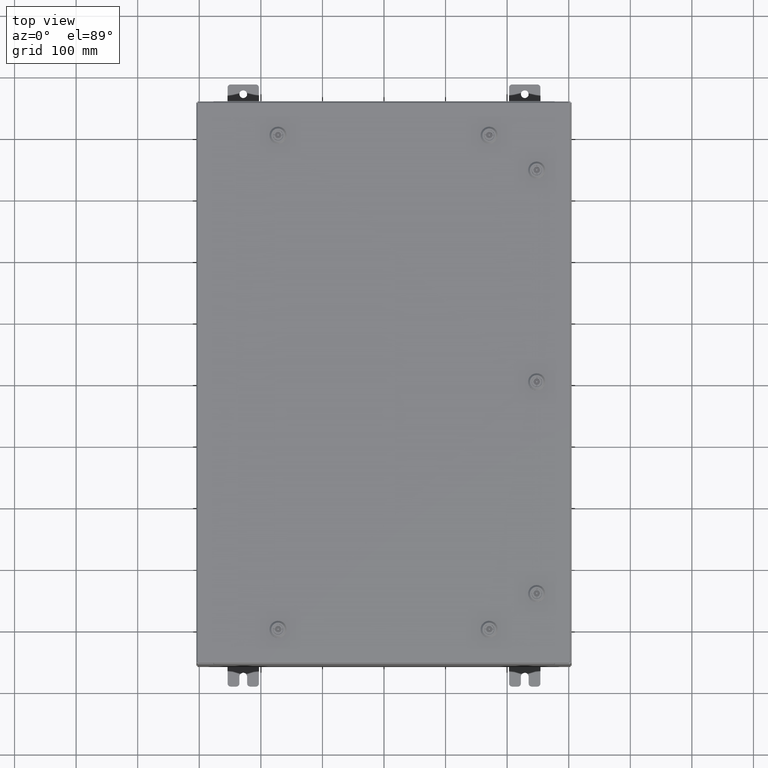
[diagram: clean part render]
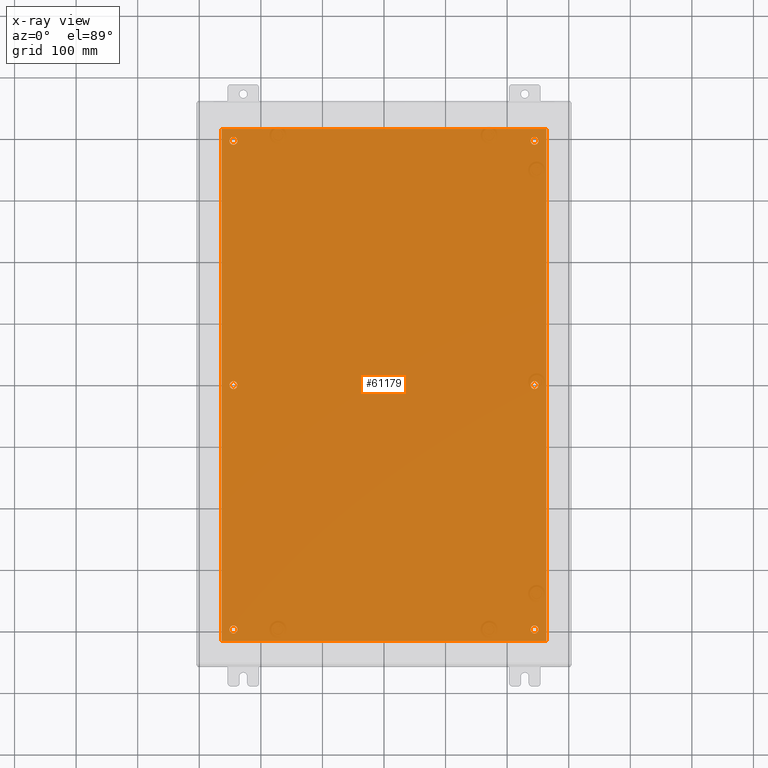
[diagram: x-ray — body ghosted, one internal face saturated and labeled with its STEP entity id]
A machine part, top view, then the same camera in x-ray: the body is ghosted and one INTERNAL B-rep face — a face not visible from any outside direction — is saturated and labeled: STEP entity #61179.
In plain terms, the highlighted planar face has unit normal (0, 0, -1).
Its self-contained STEP definition (entity closure, byte-faithful):
#755 = DIRECTION ( 'NONE',  ( -0.0000000000000000000, -0.0000000000000000000, 1.000000000000000000 ) ) ;
#839 = CIRCLE ( 'NONE', #11360, 0.2500000000000008900 ) ;
#1213 = CARTESIAN_POINT ( 'NONE',  ( 10.50000000000000400, 16.38299999999999900, -0.1040000000000009100 ) ) ;
#1406 = EDGE_CURVE ( 'NONE', #40928, #46200, #36623, .T. ) ;
#1914 = DIRECTION ( 'NONE',  ( -1.000000000000000000, 0.0000000000000000000, 0.0000000000000000000 ) ) ;
#2776 = AXIS2_PLACEMENT_3D ( 'NONE', #14610, #49249, #19579 ) ;
#2951 = VERTEX_POINT ( 'NONE', #44979 ) ;
#3229 = DIRECTION ( 'NONE',  ( -1.000000000000000000, 0.0000000000000000000, 0.0000000000000000000 ) ) ;
#3245 = CARTESIAN_POINT ( 'NONE',  ( 9.375000000000007100, 2.650915570591087300E-015, -0.1039999999999999800 ) ) ;
#3778 = EDGE_LOOP ( 'NONE', ( #18070, #28162 ) ) ;
#4069 = DIRECTION ( 'NONE',  ( -1.000000000000000000, 0.0000000000000000000, 0.0000000000000000000 ) ) ;
#4398 = EDGE_LOOP ( 'NONE', ( #21626, #49044, #27106, #21446 ) ) ;
#5051 = EDGE_CURVE ( 'NONE', #2951, #56516, #28548, .T. ) ;
#5158 = CARTESIAN_POINT ( 'NONE',  ( -10.38300000000000100, 16.38300000000000300, -0.1039999999999987600 ) ) ;
#5582 = CARTESIAN_POINT ( 'NONE',  ( 9.625000000000007100, 2.620299400612403500E-015, -0.1039999999999999800 ) ) ;
#9186 = CARTESIAN_POINT ( 'NONE',  ( 9.625000000000007100, 15.62500000000000200, -0.1039999999999999800 ) ) ;
#9357 = AXIS2_PLACEMENT_3D ( 'NONE', #62791, #32991, #3229 ) ;
#9732 = VECTOR ( 'NONE', #59581, 39.37007874015748100 ) ;
#10164 = EDGE_CURVE ( 'NONE', #64082, #55939, #55450, .T. ) ;
#10621 = DIRECTION ( 'NONE',  ( -1.000000000000000000, 0.0000000000000000000, 0.0000000000000000000 ) ) ;
#11360 = AXIS2_PLACEMENT_3D ( 'NONE', #26185, #60928, #31138 ) ;
#11791 = FACE_BOUND ( 'NONE', #52235, .T. ) ;
#11844 = ORIENTED_EDGE ( 'NONE', *, *, #17690, .T. ) ;
#12725 = CIRCLE ( 'NONE', #41417, 0.2499999999999998100 ) ;
#12917 = CARTESIAN_POINT ( 'NONE',  ( -9.375000000000005300, 2.628543122537473900E-016, -0.1039999999999999800 ) ) ;
#12989 = CARTESIAN_POINT ( 'NONE',  ( -10.38300000000000100, 16.38300000000000300, -0.1039999999999987600 ) ) ;
#13382 = DIRECTION ( 'NONE',  ( -1.000000000000000000, 0.0000000000000000000, -0.0000000000000000000 ) ) ;
#13879 = VECTOR ( 'NONE', #49670, 39.37007874015748100 ) ;
#14205 = DIRECTION ( 'NONE',  ( -1.000000000000000000, 0.0000000000000000000, 0.0000000000000000000 ) ) ;
#14610 = CARTESIAN_POINT ( 'NONE',  ( 9.625000000000007100, -15.62500000000000200, -0.1039999999999999800 ) ) ;
#14759 = DIRECTION ( 'NONE',  ( -0.0000000000000000000, -0.0000000000000000000, 1.000000000000000000 ) ) ;
#15414 = VERTEX_POINT ( 'NONE', #39891 ) ;
#17206 = AXIS2_PLACEMENT_3D ( 'NONE', #38062, #43032, #13382 ) ;
#17690 = EDGE_CURVE ( 'NONE', #27632, #37785, #21252, .T. ) ;
#18070 = ORIENTED_EDGE ( 'NONE', *, *, #19302, .T. ) ;
#18160 = AXIS2_PLACEMENT_3D ( 'NONE', #9186, #43853, #14205 ) ;
#18678 = CARTESIAN_POINT ( 'NONE',  ( -9.375000000000007100, 15.62500000000000200, -0.1039999999999999800 ) ) ;
#19302 = EDGE_CURVE ( 'NONE', #46200, #40928, #31993, .T. ) ;
#19409 = CARTESIAN_POINT ( 'NONE',  ( 9.625000000000007100, 2.620299400612403500E-015, -0.1039999999999999800 ) ) ;
#19569 = CARTESIAN_POINT ( 'NONE',  ( 9.875000000000007100, 2.620299400612403500E-015, -0.1039999999999999800 ) ) ;
#19579 = DIRECTION ( 'NONE',  ( -1.000000000000000000, 0.0000000000000000000, 0.0000000000000000000 ) ) ;
#19940 = VERTEX_POINT ( 'NONE', #3245 ) ;
#20522 = DIRECTION ( 'NONE',  ( -0.0000000000000000000, -0.0000000000000000000, 1.000000000000000000 ) ) ;
#21252 = CIRCLE ( 'NONE', #9357, 0.2500000000000008900 ) ;
#21446 = ORIENTED_EDGE ( 'NONE', *, *, #53573, .F. ) ;
#21626 = ORIENTED_EDGE ( 'NONE', *, *, #10164, .F. ) ;
#22096 = CIRCLE ( 'NONE', #25225, 0.2499999999999998100 ) ;
#22120 = EDGE_CURVE ( 'NONE', #33283, #44398, #38058, .T. ) ;
#23063 = EDGE_LOOP ( 'NONE', ( #29750, #35880 ) ) ;
#23905 = CARTESIAN_POINT ( 'NONE',  ( 9.875000000000007100, -15.62500000000000200, -0.1039999999999999800 ) ) ;
#23972 = LINE ( 'NONE', #5158, #62043 ) ;
#24403 = DIRECTION ( 'NONE',  ( -1.000000000000000000, 0.0000000000000000000, 0.0000000000000000000 ) ) ;
#24832 = CARTESIAN_POINT ( 'NONE',  ( 9.625000000000007100, 15.62500000000000200, -0.1039999999999999800 ) ) ;
#24877 = CARTESIAN_POINT ( 'NONE',  ( 10.38300000000000100, -16.38299999999999600, -0.1040000000000009100 ) ) ;
#25026 = FACE_BOUND ( 'NONE', #3778, .T. ) ;
#25225 = AXIS2_PLACEMENT_3D ( 'NONE', #24832, #59529, #29755 ) ;
#25678 = CARTESIAN_POINT ( 'NONE',  ( -9.875000000000007100, -15.62500000000000200, -0.1039999999999999800 ) ) ;
#26138 = EDGE_CURVE ( 'NONE', #15414, #60465, #41777, .T. ) ;
#26185 = CARTESIAN_POINT ( 'NONE',  ( -9.625000000000007100, 15.62500000000000200, -0.1039999999999999800 ) ) ;
#26334 = EDGE_CURVE ( 'NONE', #56516, #64082, #23972, .T. ) ;
#26389 = EDGE_CURVE ( 'NONE', #50911, #19940, #34032, .T. ) ;
#26517 = CARTESIAN_POINT ( 'NONE',  ( -9.875000000000007100, 15.62500000000000200, -0.1039999999999999800 ) ) ;
#26540 = FACE_BOUND ( 'NONE', #23063, .T. ) ;
#27106 = ORIENTED_EDGE ( 'NONE', *, *, #5051, .F. ) ;
#27632 = VERTEX_POINT ( 'NONE', #61643 ) ;
#28044 = ORIENTED_EDGE ( 'NONE', *, *, #40827, .T. ) ;
#28162 = ORIENTED_EDGE ( 'NONE', *, *, #1406, .T. ) ;
#28379 = DIRECTION ( 'NONE',  ( -0.0000000000000000000, -0.0000000000000000000, 1.000000000000000000 ) ) ;
#28548 = LINE ( 'NONE', #1213, #13879 ) ;
#28673 = EDGE_CURVE ( 'NONE', #19940, #50911, #37765, .T. ) ;
#28855 = ORIENTED_EDGE ( 'NONE', *, *, #26138, .T. ) ;
#29220 = EDGE_CURVE ( 'NONE', #42708, #34463, #56692, .T. ) ;
#29583 = CARTESIAN_POINT ( 'NONE',  ( -10.50000000000000200, -16.38299999999999600, -0.1040000000000009100 ) ) ;
#29750 = ORIENTED_EDGE ( 'NONE', *, *, #26389, .T. ) ;
#29755 = DIRECTION ( 'NONE',  ( -1.000000000000000000, 0.0000000000000000000, 0.0000000000000000000 ) ) ;
#29866 = ORIENTED_EDGE ( 'NONE', *, *, #46472, .T. ) ;
#29872 = CARTESIAN_POINT ( 'NONE',  ( -9.875000000000005300, 2.934704822324310800E-016, -0.1039999999999999800 ) ) ;
#29937 = AXIS2_PLACEMENT_3D ( 'NONE', #50206, #20522, #55196 ) ;
#31138 = DIRECTION ( 'NONE',  ( -1.000000000000000000, 0.0000000000000000000, 0.0000000000000000000 ) ) ;
#31672 = DIRECTION ( 'NONE',  ( -0.0000000000000000000, -0.0000000000000000000, 1.000000000000000000 ) ) ;
#31884 = AXIS2_PLACEMENT_3D ( 'NONE', #19409, #54072, #24403 ) ;
#31993 = CIRCLE ( 'NONE', #47866, 0.2500000000000008900 ) ;
#32055 = EDGE_LOOP ( 'NONE', ( #11844, #62315 ) ) ;
#32991 = DIRECTION ( 'NONE',  ( -0.0000000000000000000, -0.0000000000000000000, 1.000000000000000000 ) ) ;
#33283 = VERTEX_POINT ( 'NONE', #18678 ) ;
#33816 = AXIS2_PLACEMENT_3D ( 'NONE', #61472, #31672, #1914 ) ;
#33985 = EDGE_LOOP ( 'NONE', ( #37739, #29866 ) ) ;
#34032 = CIRCLE ( 'NONE', #48047, 0.2499999999999998100 ) ;
#34463 = VERTEX_POINT ( 'NONE', #39733 ) ;
#35880 = ORIENTED_EDGE ( 'NONE', *, *, #28673, .T. ) ;
#36113 = LINE ( 'NONE', #24877, #9732 ) ;
#36119 = CARTESIAN_POINT ( 'NONE',  ( -10.38300000000000100, -16.38299999999999600, -0.1040000000000009100 ) ) ;
#36623 = CIRCLE ( 'NONE', #49882, 0.2500000000000008900 ) ;
#37630 = CARTESIAN_POINT ( 'NONE',  ( 10.38300000000000100, -16.38299999999999600, -0.1040000000000009100 ) ) ;
#37739 = ORIENTED_EDGE ( 'NONE', *, *, #22120, .T. ) ;
#37765 = CIRCLE ( 'NONE', #31884, 0.2499999999999998100 ) ;
#37785 = VERTEX_POINT ( 'NONE', #25678 ) ;
#38058 = CIRCLE ( 'NONE', #33816, 0.2500000000000008900 ) ;
#38062 = CARTESIAN_POINT ( 'NONE',  ( 0.0000000000000000000, 0.0000000000000000000, -0.1039999999999999800 ) ) ;
#38179 = FACE_BOUND ( 'NONE', #63958, .T. ) ;
#39544 = EDGE_CURVE ( 'NONE', #60465, #15414, #22096, .T. ) ;
#39733 = CARTESIAN_POINT ( 'NONE',  ( 9.375000000000007100, -15.62500000000000200, -0.1039999999999999800 ) ) ;
#39891 = CARTESIAN_POINT ( 'NONE',  ( 9.375000000000007100, 15.62500000000000200, -0.1039999999999999800 ) ) ;
#40308 = DIRECTION ( 'NONE',  ( -0.0000000000000000000, -0.0000000000000000000, 1.000000000000000000 ) ) ;
#40827 = EDGE_CURVE ( 'NONE', #34463, #42708, #12725, .T. ) ;
#40928 = VERTEX_POINT ( 'NONE', #29872 ) ;
#41417 = AXIS2_PLACEMENT_3D ( 'NONE', #44405, #14759, #49405 ) ;
#41777 = CIRCLE ( 'NONE', #18160, 0.2499999999999998100 ) ;
#42708 = VERTEX_POINT ( 'NONE', #23905 ) ;
#43032 = DIRECTION ( 'NONE',  ( 0.0000000000000000000, 0.0000000000000000000, -1.000000000000000000 ) ) ;
#43853 = DIRECTION ( 'NONE',  ( -0.0000000000000000000, -0.0000000000000000000, 1.000000000000000000 ) ) ;
#44398 = VERTEX_POINT ( 'NONE', #26517 ) ;
#44405 = CARTESIAN_POINT ( 'NONE',  ( 9.625000000000007100, -15.62500000000000200, -0.1039999999999999800 ) ) ;
#44840 = DIRECTION ( 'NONE',  ( 0.0000000000000000000, -1.000000000000000000, 0.0000000000000000000 ) ) ;
#44979 = CARTESIAN_POINT ( 'NONE',  ( 10.38300000000000100, 16.38300000000000300, -0.1040000000000009100 ) ) ;
#46200 = VERTEX_POINT ( 'NONE', #12917 ) ;
#46472 = EDGE_CURVE ( 'NONE', #44398, #33283, #839, .T. ) ;
#47803 = PLANE ( 'NONE',  #17206 ) ;
#47866 = AXIS2_PLACEMENT_3D ( 'NONE', #58090, #28379, #63198 ) ;
#48047 = AXIS2_PLACEMENT_3D ( 'NONE', #5582, #40308, #10621 ) ;
#49044 = ORIENTED_EDGE ( 'NONE', *, *, #26334, .F. ) ;
#49249 = DIRECTION ( 'NONE',  ( -0.0000000000000000000, -0.0000000000000000000, 1.000000000000000000 ) ) ;
#49405 = DIRECTION ( 'NONE',  ( -1.000000000000000000, 0.0000000000000000000, 0.0000000000000000000 ) ) ;
#49534 = DIRECTION ( 'NONE',  ( 1.000000000000000000, -0.0000000000000000000, -0.0000000000000000000 ) ) ;
#49670 = DIRECTION ( 'NONE',  ( -1.000000000000000000, -0.0000000000000000000, -0.0000000000000000000 ) ) ;
#49807 = FACE_OUTER_BOUND ( 'NONE', #4398, .T. ) ;
#49882 = AXIS2_PLACEMENT_3D ( 'NONE', #51151, #755, #4069 ) ;
#50206 = CARTESIAN_POINT ( 'NONE',  ( -9.625000000000007100, -15.62500000000000200, -0.1039999999999999800 ) ) ;
#50911 = VERTEX_POINT ( 'NONE', #19569 ) ;
#51151 = CARTESIAN_POINT ( 'NONE',  ( -9.625000000000005300, 2.628543122537473900E-016, -0.1039999999999999800 ) ) ;
#51321 = FACE_BOUND ( 'NONE', #32055, .T. ) ;
#52235 = EDGE_LOOP ( 'NONE', ( #60158, #28855 ) ) ;
#53573 = EDGE_CURVE ( 'NONE', #55939, #2951, #36113, .T. ) ;
#53896 = VECTOR ( 'NONE', #49534, 39.37007874015748100 ) ;
#54072 = DIRECTION ( 'NONE',  ( -0.0000000000000000000, -0.0000000000000000000, 1.000000000000000000 ) ) ;
#55196 = DIRECTION ( 'NONE',  ( -1.000000000000000000, 0.0000000000000000000, 0.0000000000000000000 ) ) ;
#55450 = LINE ( 'NONE', #29583, #53896 ) ;
#55939 = VERTEX_POINT ( 'NONE', #37630 ) ;
#56113 = CIRCLE ( 'NONE', #29937, 0.2500000000000008900 ) ;
#56195 = ORIENTED_EDGE ( 'NONE', *, *, #29220, .T. ) ;
#56516 = VERTEX_POINT ( 'NONE', #12989 ) ;
#56692 = CIRCLE ( 'NONE', #2776, 0.2499999999999998100 ) ;
#57168 = EDGE_CURVE ( 'NONE', #37785, #27632, #56113, .T. ) ;
#57243 = CARTESIAN_POINT ( 'NONE',  ( 9.875000000000007100, 15.62500000000000200, -0.1039999999999999800 ) ) ;
#58090 = CARTESIAN_POINT ( 'NONE',  ( -9.625000000000005300, 2.628543122537473900E-016, -0.1039999999999999800 ) ) ;
#59529 = DIRECTION ( 'NONE',  ( -0.0000000000000000000, -0.0000000000000000000, 1.000000000000000000 ) ) ;
#59581 = DIRECTION ( 'NONE',  ( 0.0000000000000000000, 1.000000000000000000, 0.0000000000000000000 ) ) ;
#60158 = ORIENTED_EDGE ( 'NONE', *, *, #39544, .T. ) ;
#60465 = VERTEX_POINT ( 'NONE', #57243 ) ;
#60928 = DIRECTION ( 'NONE',  ( -0.0000000000000000000, -0.0000000000000000000, 1.000000000000000000 ) ) ;
#61179 = ADVANCED_FACE ( 'NONE', ( #26540, #25026, #51321, #38179, #11791, #63105, #49807 ), #47803, .T. ) ;
#61472 = CARTESIAN_POINT ( 'NONE',  ( -9.625000000000007100, 15.62500000000000200, -0.1039999999999999800 ) ) ;
#61643 = CARTESIAN_POINT ( 'NONE',  ( -9.375000000000007100, -15.62500000000000200, -0.1039999999999999800 ) ) ;
#62043 = VECTOR ( 'NONE', #44840, 39.37007874015748100 ) ;
#62315 = ORIENTED_EDGE ( 'NONE', *, *, #57168, .T. ) ;
#62791 = CARTESIAN_POINT ( 'NONE',  ( -9.625000000000007100, -15.62500000000000200, -0.1039999999999999800 ) ) ;
#63105 = FACE_BOUND ( 'NONE', #33985, .T. ) ;
#63198 = DIRECTION ( 'NONE',  ( -1.000000000000000000, 0.0000000000000000000, 0.0000000000000000000 ) ) ;
#63958 = EDGE_LOOP ( 'NONE', ( #56195, #28044 ) ) ;
#64082 = VERTEX_POINT ( 'NONE', #36119 ) ;